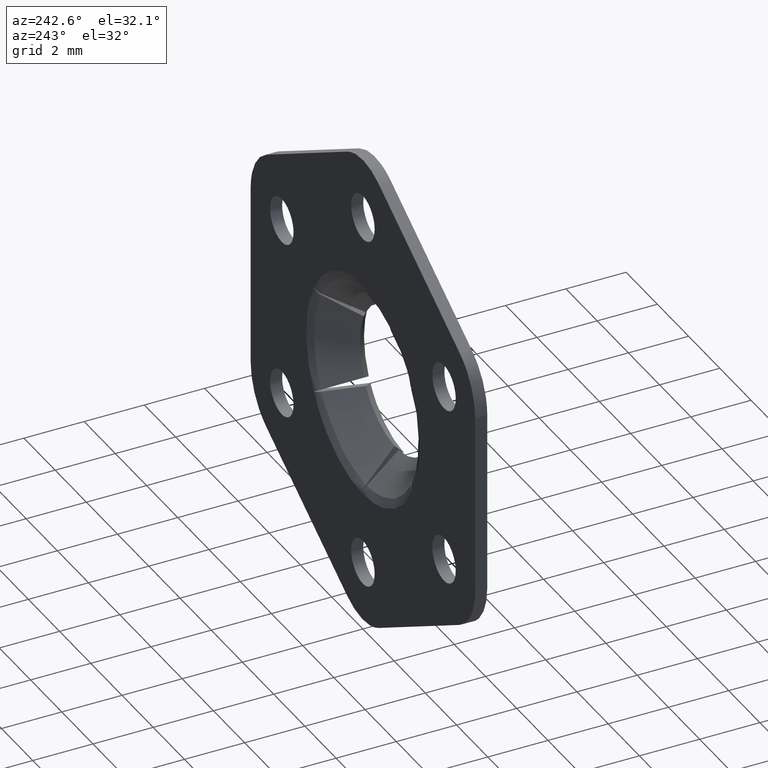
[diagram: clean part render]
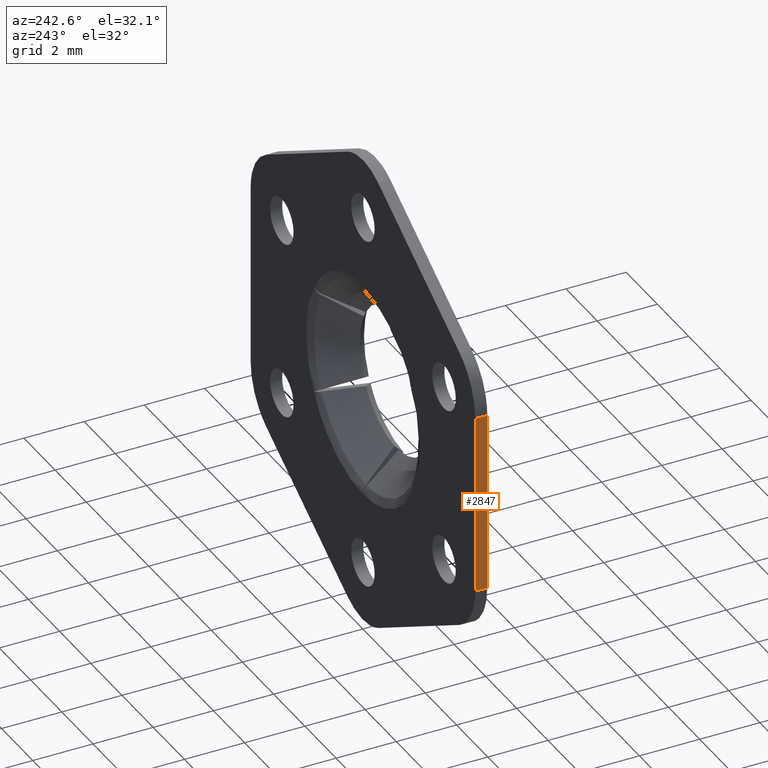
[diagram: same view with one face highlighted and labeled with its STEP entity id]
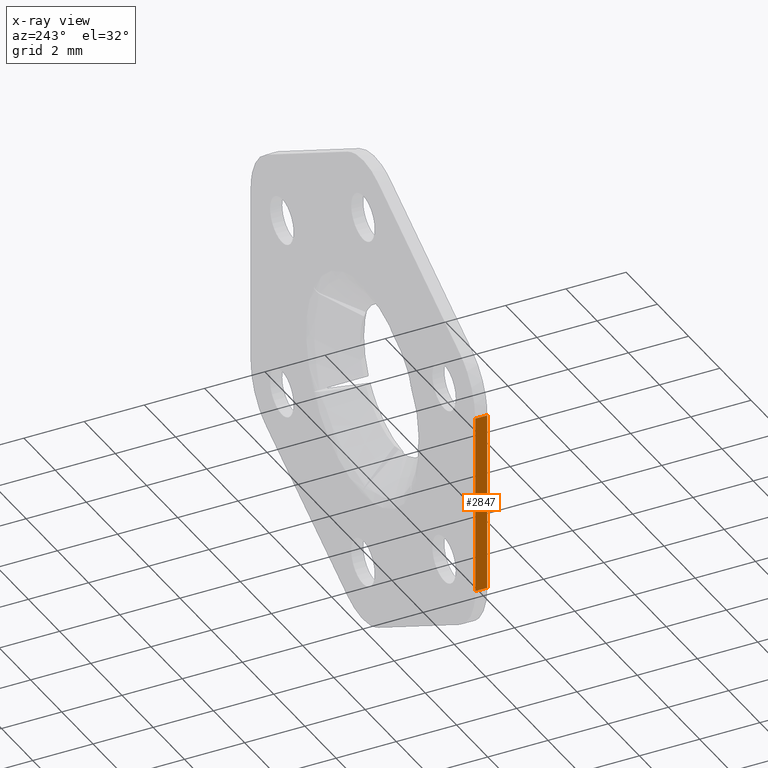
[diagram: x-ray of the same camera — body ghosted, the highlighted face saturated]
A machine part, auxiliary view. The second image highlights one B-rep face of the part: STEP entity #2847.
The next image is the same camera in x-ray: the body ghosted, the highlighted face saturated — about 0% of this face is hidden behind the body in this view.
In plain terms, the highlighted face is a freeform B-spline surface patch.
Its self-contained STEP definition (entity closure, byte-faithful):
#2668=CARTESIAN_POINT('',(-7.196152422706800,0.0,-2.999999999999625));
#2669=VERTEX_POINT('',#2668);
#2688=CARTESIAN_POINT('',(-7.196152422706800,-0.399999999999906,-2.999999999999625));
#2689=VERTEX_POINT('',#2688);
#2702=CARTESIAN_POINT('',(-7.196152422706800,0.0,-2.999999999999625));
#2703=CARTESIAN_POINT('',(-7.196152422706800,-0.399999999999906,-2.999999999999625));
#2704=QUASI_UNIFORM_CURVE('',1,(#2702,#2703),.UNSPECIFIED.,.F.,.U.);
#2705=EDGE_CURVE('',#2669,#2689,#2704,.T.);
#2724=CARTESIAN_POINT('',(-7.196152422706860,0.0,3.000000000000210));
#2725=VERTEX_POINT('',#2724);
#2739=CARTESIAN_POINT('',(-7.196152422706860,-0.399999999999906,3.000000000000210));
#2740=VERTEX_POINT('',#2739);
#2741=CARTESIAN_POINT('',(-7.196152422706860,-0.399999999999906,3.000000000000210));
#2742=CARTESIAN_POINT('',(-7.196152422706860,0.0,3.000000000000210));
#2743=QUASI_UNIFORM_CURVE('',1,(#2741,#2742),.UNSPECIFIED.,.F.,.U.);
#2744=EDGE_CURVE('',#2740,#2725,#2743,.T.);
#2828=CARTESIAN_POINT('',(-7.196152422706789,-0.419979999224624,3.299699988371038));
#2829=CARTESIAN_POINT('',(-7.196152422706789,-0.419979999224624,-3.299700149302993));
#2830=CARTESIAN_POINT('',(-7.196152422706789,0.019980009953554,3.299699988371038));
#2831=CARTESIAN_POINT('',(-7.196152422706789,0.019980009953554,-3.299700149302993));
#2832=B_SPLINE_SURFACE_WITH_KNOTS('',1,1,((#2828,#2830),(#2829,#2831)),.UNSPECIFIED.,.F.,.F.,.U.,(2,2),(2,2),(0.0,6.599400137674031),(0.0,0.439960009178178),.UNSPECIFIED.);
#2833=CARTESIAN_POINT('',(-7.196152422706800,-0.399999999999906,-2.999999999999625));
#2834=CARTESIAN_POINT('',(-7.196152422706860,-0.399999999999906,3.000000000000210));
#2835=QUASI_UNIFORM_CURVE('',1,(#2833,#2834),.UNSPECIFIED.,.F.,.U.);
#2836=EDGE_CURVE('',#2689,#2740,#2835,.T.);
#2837=ORIENTED_EDGE('',*,*,#2836,.T.);
#2838=ORIENTED_EDGE('',*,*,#2744,.T.);
#2839=CARTESIAN_POINT('',(-7.196152422706800,0.0,-2.999999999999625));
#2840=CARTESIAN_POINT('',(-7.196152422706860,0.0,3.000000000000210));
#2841=QUASI_UNIFORM_CURVE('',1,(#2839,#2840),.UNSPECIFIED.,.F.,.U.);
#2842=EDGE_CURVE('',#2669,#2725,#2841,.T.);
#2843=ORIENTED_EDGE('',*,*,#2842,.F.);
#2844=ORIENTED_EDGE('',*,*,#2705,.T.);
#2845=EDGE_LOOP('',(#2837,#2838,#2843,#2844));
#2846=FACE_OUTER_BOUND('',#2845,.T.);
#2847=ADVANCED_FACE('',(#2846),#2832,.F.);